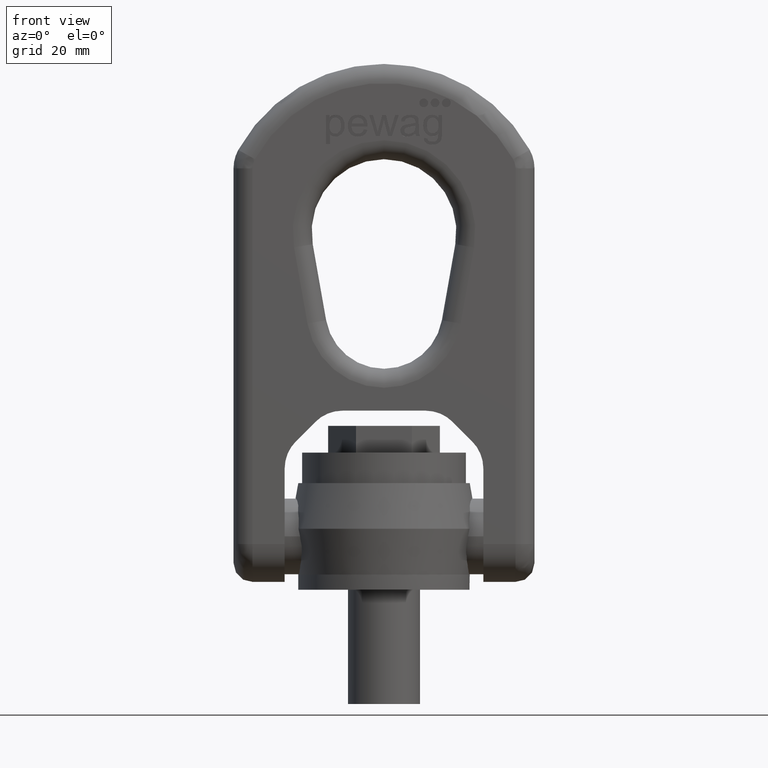
[diagram: clean part render]
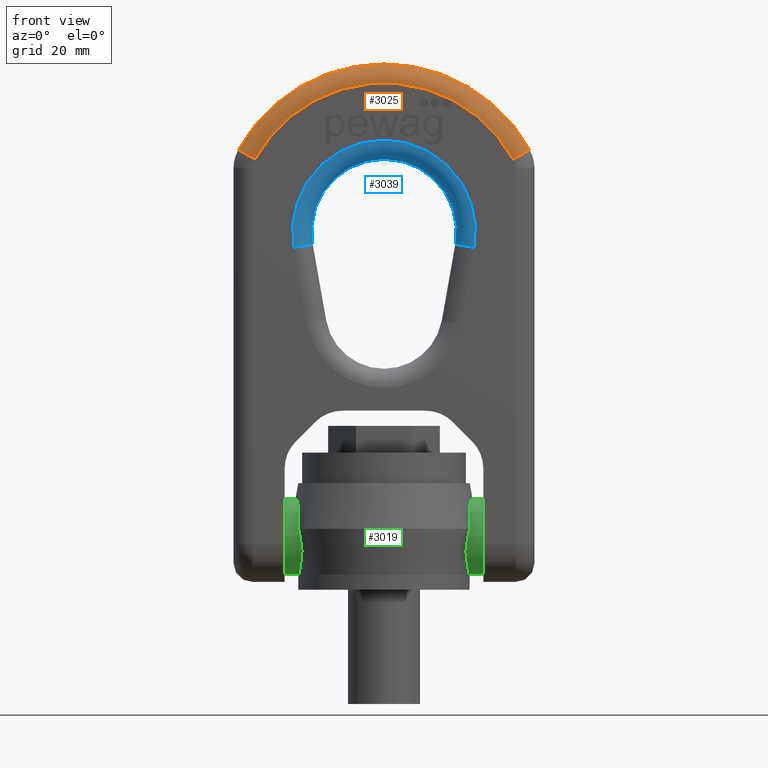
[diagram: same view with three faces highlighted in distinct colors, each labeled with its STEP entity id]
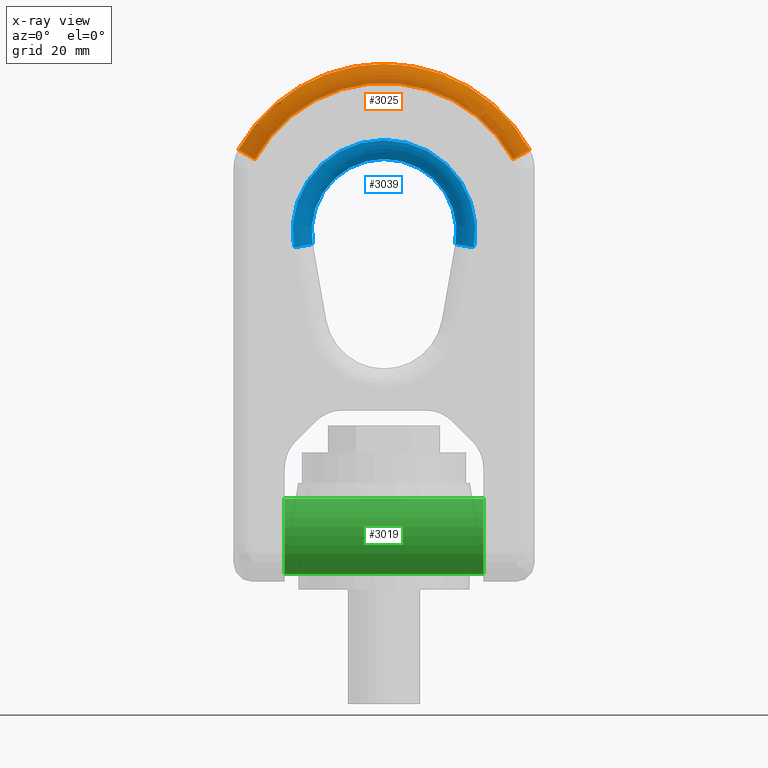
[diagram: x-ray of the same camera — body ghosted, the three highlighted faces saturated]
A machine part, front view with three faces highlighted in distinct colors.
The next image is the same camera in x-ray (body ghosted, the three faces saturated) — at least one of them is partly hidden behind the body in this view.
Their STEP definitions:

[orange] entity #3025 — the highlighted toroidal blend (fillet) surface has major radius 38.705 mm and minor (blend) radius 5 mm.
#201=TOROIDAL_SURFACE('',#6039,38.705,5.);
#2650=FACE_OUTER_BOUND('',#3418,.T.);
#3025=ADVANCED_FACE('',(#2650),#201,.T.);
#3418=EDGE_LOOP('',(#4637,#4638,#4639,#4640));
#4637=ORIENTED_EDGE('',*,*,#5733,.F.);
#4638=ORIENTED_EDGE('',*,*,#5182,.F.);
#4639=ORIENTED_EDGE('',*,*,#5735,.T.);
#4640=ORIENTED_EDGE('',*,*,#5371,.F.);
#4748=VERTEX_POINT('',#7080);
#4749=VERTEX_POINT('',#7082);
#4927=VERTEX_POINT('',#7761);
#4930=VERTEX_POINT('',#7766);
#5182=EDGE_CURVE('',#4748,#4749,#5766,.T.);
#5371=EDGE_CURVE('',#4930,#4927,#5792,.T.);
#5733=EDGE_CURVE('',#4749,#4930,#5811,.T.);
#5735=EDGE_CURVE('',#4748,#4927,#5813,.T.);
#5766=CIRCLE('',#5872,38.705);
#5792=CIRCLE('',#5905,43.705);
#5811=CIRCLE('',#6036,5.);
#5813=CIRCLE('',#6038,5.);
#5872=AXIS2_PLACEMENT_3D('',#7081,#6202,#6203);
#5905=AXIS2_PLACEMENT_3D('',#7767,#6363,#6364);
#6036=AXIS2_PLACEMENT_3D('',#9737,#6880,#6881);
#6038=AXIS2_PLACEMENT_3D('',#9771,#6884,#6885);
#6039=AXIS2_PLACEMENT_3D('',#9772,#6886,#6887);
#6202=DIRECTION('',(0.,-1.,0.));
#6203=DIRECTION('',(0.,0.,-1.));
#6363=DIRECTION('',(0.,1.,0.));
#6364=DIRECTION('',(0.,0.,-1.));
#6880=DIRECTION('',(-0.48368696810476,-2.42928194826006E-15,-0.87524106215695));
#6881=DIRECTION('',(0.875241062156949,0.,-0.48368696810476));
#6884=DIRECTION('',(-0.483686968104757,0.,0.875241062156951));
#6885=DIRECTION('',(-0.875241062156951,0.,-0.483686968104757));
#6886=DIRECTION('',(0.,-1.,0.));
#6887=DIRECTION('',(0.,0.,-1.));
#7080=CARTESIAN_POINT('',(33.8762053107847,-10.,113.016104100495));
#7081=CARTESIAN_POINT('',(0.,-10.,94.295));
#7082=CARTESIAN_POINT('',(-33.8762053107847,-10.,113.016104100495));
#7761=CARTESIAN_POINT('',(38.2524106215695,-5.,115.434538941018));
#7766=CARTESIAN_POINT('',(-38.2524106215695,-5.,115.434538941018));
#7767=CARTESIAN_POINT('',(0.,-5.,94.295));
#9737=CARTESIAN_POINT('',(-33.8762053107847,-5.,113.016104100495));
#9771=CARTESIAN_POINT('',(33.8762053107847,-5.,113.016104100495));
#9772=CARTESIAN_POINT('',(0.,-5.,94.295));

[blue] entity #3039 — the highlighted toroidal blend (fillet) surface has major radius 24 mm and minor (blend) radius 5 mm.
#206=TOROIDAL_SURFACE('',#6063,24.,5.);
#2664=FACE_OUTER_BOUND('',#3432,.T.);
#3039=ADVANCED_FACE('',(#2664),#206,.T.);
#3432=EDGE_LOOP('',(#4693,#4694,#4695,#4696));
#4693=ORIENTED_EDGE('',*,*,#5747,.T.);
#4694=ORIENTED_EDGE('',*,*,#5356,.F.);
#4695=ORIENTED_EDGE('',*,*,#5748,.T.);
#4696=ORIENTED_EDGE('',*,*,#5177,.F.);
#4744=VERTEX_POINT('',#7071);
#4745=VERTEX_POINT('',#7073);
#4914=VERTEX_POINT('',#7727);
#4916=VERTEX_POINT('',#7733);
#5177=EDGE_CURVE('',#4744,#4745,#5763,.T.);
#5356=EDGE_CURVE('',#4916,#4914,#5788,.T.);
#5747=EDGE_CURVE('',#4744,#4914,#5825,.T.);
#5748=EDGE_CURVE('',#4916,#4745,#5826,.T.);
#5763=CIRCLE('',#5869,24.);
#5788=CIRCLE('',#5897,19.);
#5825=CIRCLE('',#6059,5.);
#5826=CIRCLE('',#6061,5.);
#5869=AXIS2_PLACEMENT_3D('',#7072,#6194,#6195);
#5897=AXIS2_PLACEMENT_3D('',#7734,#6336,#6337);
#6059=AXIS2_PLACEMENT_3D('',#9840,#6926,#6927);
#6061=AXIS2_PLACEMENT_3D('',#9842,#6930,#6931);
#6063=AXIS2_PLACEMENT_3D('',#9844,#6934,#6935);
#6194=DIRECTION('',(0.,1.,0.));
#6195=DIRECTION('',(0.,0.,-1.));
#6336=DIRECTION('',(0.,-1.,0.));
#6337=DIRECTION('',(0.,0.,-1.));
#6926=DIRECTION('',(-0.17364817766693,0.,0.984807753012208));
#6927=DIRECTION('',(0.984807753012208,0.,0.17364817766693));
#6930=DIRECTION('',(0.17364817766693,2.40985256287532E-16,0.984807753012208));
#6931=DIRECTION('',(0.984807753012208,0.,-0.17364817766693));
#6934=DIRECTION('',(0.,-1.,0.));
#6935=DIRECTION('',(0.,0.,-1.));
#7071=CARTESIAN_POINT('',(-23.635386072293,-10.,89.8324437359937));
#7072=CARTESIAN_POINT('',(0.,-10.,94.));
#7073=CARTESIAN_POINT('',(23.635386072293,-10.,89.8324437359937));
#7727=CARTESIAN_POINT('',(-18.711347307232,-5.,90.7006846243283));
#7733=CARTESIAN_POINT('',(18.711347307232,-5.,90.7006846243283));
#7734=CARTESIAN_POINT('',(0.,-5.,94.));
#9840=CARTESIAN_POINT('',(-23.635386072293,-5.,89.8324437359937));
#9842=CARTESIAN_POINT('',(23.635386072293,-5.,89.8324437359937));
#9844=CARTESIAN_POINT('',(0.,-5.,94.));

[green] entity #3019 — the highlighted cylindrical surface (bore or boss wall) has radius 10 mm, axis along (-1, 0, 0).
#3019=ADVANCED_FACE('',(#3135,#3136),#3060,.T.);
#3060=CYLINDRICAL_SURFACE('',#6029,10.);
#3135=FACE_BOUND('',#3411,.T.);
#3136=FACE_BOUND('',#3412,.T.);
#3411=EDGE_LOOP('',(#4613,#4614));
#3412=EDGE_LOOP('',(#4615,#4616));
#4613=ORIENTED_EDGE('',*,*,#5162,.F.);
#4614=ORIENTED_EDGE('',*,*,#5716,.F.);
#4615=ORIENTED_EDGE('',*,*,#5166,.F.);
#4616=ORIENTED_EDGE('',*,*,#5717,.F.);
#4729=VERTEX_POINT('',#7037);
#4731=VERTEX_POINT('',#7040);
#4733=VERTEX_POINT('',#7046);
#4735=VERTEX_POINT('',#7049);
#5162=EDGE_CURVE('',#4729,#4731,#5757,.T.);
#5166=EDGE_CURVE('',#4733,#4735,#5758,.T.);
#5716=EDGE_CURVE('',#4731,#4729,#5801,.T.);
#5717=EDGE_CURVE('',#4735,#4733,#5802,.T.);
#5757=CIRCLE('',#5859,10.);
#5758=CIRCLE('',#5861,10.);
#5801=CIRCLE('',#6012,10.);
#5802=CIRCLE('',#6014,10.);
#5859=AXIS2_PLACEMENT_3D('',#7039,#6165,#6166);
#5861=AXIS2_PLACEMENT_3D('',#7048,#6172,#6173);
#6012=AXIS2_PLACEMENT_3D('',#9690,#6825,#6826);
#6014=AXIS2_PLACEMENT_3D('',#9692,#6829,#6830);
#6029=AXIS2_PLACEMENT_3D('',#9714,#6866,#6867);
#6165=DIRECTION('',(-1.,0.,3.85494105772624E-16));
#6166=DIRECTION('',(-3.46944695195361E-16,0.,-1.));
#6172=DIRECTION('',(1.,0.,3.85494105772624E-16));
#6173=DIRECTION('',(-3.46944695195361E-16,0.,1.));
#6825=DIRECTION('',(-1.,0.,3.85494105772624E-16));
#6826=DIRECTION('',(-3.46944695195361E-16,0.,-1.));
#6829=DIRECTION('',(1.,0.,3.85494105772624E-16));
#6830=DIRECTION('',(-3.46944695195361E-16,0.,1.));
#6866=DIRECTION('',(-1.,0.,0.));
#6867=DIRECTION('',(0.,0.,1.));
#7037=CARTESIAN_POINT('',(-26.07,-10.,14.));
#7039=CARTESIAN_POINT('',(-26.07,0.,14.));
#7040=CARTESIAN_POINT('',(-26.07,10.0000000000001,14.));
#7046=CARTESIAN_POINT('',(26.07,-10.,14.));
#7048=CARTESIAN_POINT('',(26.07,0.,14.));
#7049=CARTESIAN_POINT('',(26.07,9.99999999999994,14.));
#9690=CARTESIAN_POINT('',(-26.07,0.,14.));
#9692=CARTESIAN_POINT('',(26.07,0.,14.));
#9714=CARTESIAN_POINT('',(39.5,0.,14.));